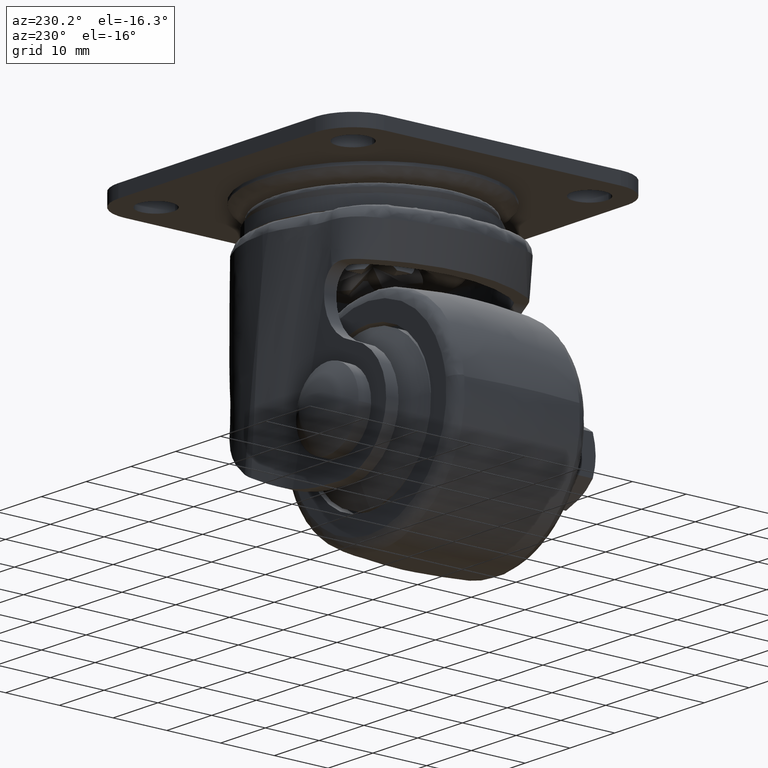
[diagram: clean part render]
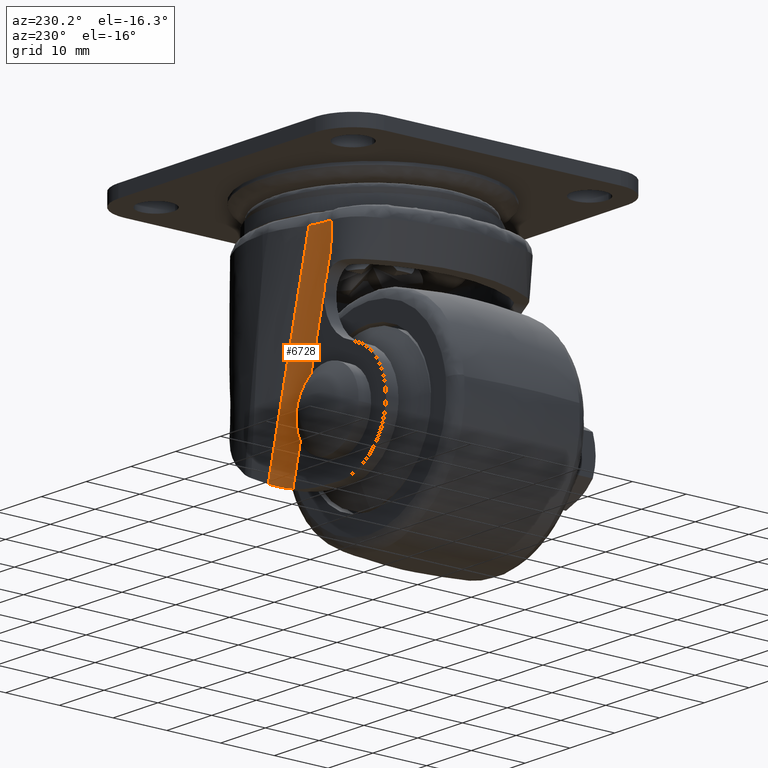
[diagram: same view with one face highlighted and labeled with its STEP entity id]
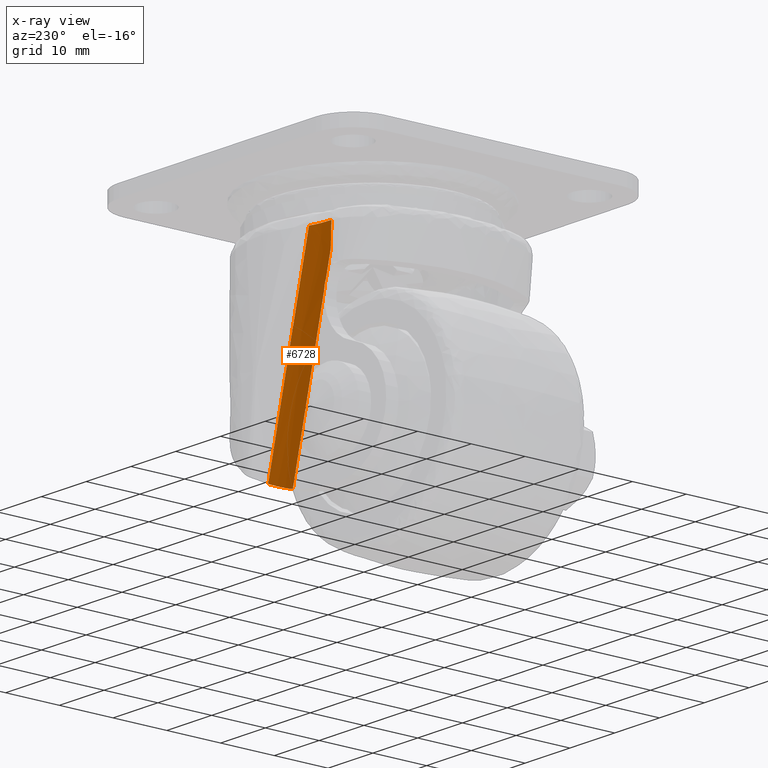
[diagram: x-ray of the same camera — body ghosted, the highlighted face saturated]
A machine part, auxiliary view. The second image highlights one B-rep face of the part: STEP entity #6728.
The next image is the same camera in x-ray: the body ghosted, the highlighted face saturated — about 0% of this face is hidden behind the body in this view.
In plain terms, the highlighted face is a freeform B-spline surface patch.
Its self-contained STEP definition (entity closure, byte-faithful):
#4247=CARTESIAN_POINT('',(-10.891872413798600,17.800000000000001,-19.564617453869751));
#4248=VERTEX_POINT('',#4247);
#4262=CARTESIAN_POINT('',(-10.543469296541661,17.800100559974599,-20.776611627268800));
#4263=VERTEX_POINT('',#4262);
#4264=CARTESIAN_POINT('',(-10.543469296541661,17.800100559974599,-20.776611627268800));
#4265=CARTESIAN_POINT('',(-10.568957165791710,17.800218968249411,-20.565247248742359));
#4266=CARTESIAN_POINT('',(-10.611048432305880,17.800320316515020,-20.358655729035188));
#4267=CARTESIAN_POINT('',(-10.727182804815460,17.800211318014330,-19.954657677524050));
#4268=CARTESIAN_POINT('',(-10.801225908746160,17.800000000000001,-19.757251145207199));
#4269=CARTESIAN_POINT('',(-10.891872413798559,17.800000000000001,-19.564617453869801));
#4270=B_SPLINE_CURVE_WITH_KNOTS('',3,(#4264,#4265,#4266,#4267,#4268,#4269),.UNSPECIFIED.,.F.,.U.,(4,2,4),(0.0,0.500000000000000,1.0),.UNSPECIFIED.);
#4271=EDGE_CURVE('',#4263,#4248,#4270,.T.);
#4350=CARTESIAN_POINT('',(-8.362607122641091,18.851401869158849,-11.258884488726800));
#4351=VERTEX_POINT('',#4350);
#4422=CARTESIAN_POINT('',(-12.161408572798400,17.834037081839401,-11.065201181730499));
#4423=VERTEX_POINT('',#4422);
#4450=CARTESIAN_POINT('',(-12.161408572798400,17.834037081839401,-11.065201181730499));
#4451=CARTESIAN_POINT('',(-10.159844048639513,17.992643068313022,-11.167251694580990));
#4452=CARTESIAN_POINT('',(-8.362607122641091,18.851401869158849,-11.258884488726800));
#4460=(BOUNDED_CURVE()B_SPLINE_CURVE(2,(#4450,#4451,#4452),.UNSPECIFIED.,.F.,.U.)CURVE()GEOMETRIC_REPRESENTATION_ITEM()QUASI_UNIFORM_CURVE()RATIONAL_B_SPLINE_CURVE((1.0,0.981990180371549,1.0))REPRESENTATION_ITEM(''));
#4461=EDGE_CURVE('',#4423,#4351,#4460,.T.);
#5545=CARTESIAN_POINT('',(-11.974270727076560,17.800000000001749,-15.223352042565550));
#5546=VERTEX_POINT('',#5545);
#5547=CARTESIAN_POINT('',(-11.974270727076560,17.800000000001749,-15.223352042565550));
#5548=CARTESIAN_POINT('',(-11.991592150697350,17.800975090017690,-14.722576629232931));
#5549=CARTESIAN_POINT('',(-12.026999265753711,17.802968293644629,-13.698930243956950));
#5550=CARTESIAN_POINT('',(-12.092801888951360,17.816467207444308,-12.312972992399800));
#5551=CARTESIAN_POINT('',(-12.140620230055930,17.828451532002472,-11.427857976382610));
#5552=CARTESIAN_POINT('',(-12.161408572798400,17.834037081839401,-11.065201181730499));
#5553=B_SPLINE_CURVE_WITH_KNOTS('',3,(#5547,#5548,#5549,#5550,#5551,#5552),.UNSPECIFIED.,.F.,.U.,(4,1,1,4),(0.0,0.234461903216059,0.479268896439672,0.649262785365348),.UNSPECIFIED.);
#5554=EDGE_CURVE('',#5546,#4423,#5553,.T.);
#6511=CARTESIAN_POINT('',(0.726185769727384,18.851401869158849,-47.712061239150508));
#6512=VERTEX_POINT('',#6511);
#6513=CARTESIAN_POINT('',(-8.362607122641091,18.851401869158849,-11.258884488726800));
#6514=CARTESIAN_POINT('',(0.726185769727384,18.851401869158849,-47.712061239150508));
#6515=QUASI_UNIFORM_CURVE('',1,(#6513,#6514),.UNSPECIFIED.,.F.,.U.);
#6516=EDGE_CURVE('',#4351,#6512,#6515,.T.);
#6577=CARTESIAN_POINT('',(-10.891872413798600,17.800000000000001,-19.564617453869751));
#6578=CARTESIAN_POINT('',(-11.974270727076560,17.800000000001749,-15.223352042565550));
#6579=QUASI_UNIFORM_CURVE('',1,(#6577,#6578),.UNSPECIFIED.,.F.,.U.);
#6580=EDGE_CURVE('',#4248,#5546,#6579,.T.);
#6606=CARTESIAN_POINT('',(-3.503599881279640,17.800000000000001,-49.197375917796997));
#6607=VERTEX_POINT('',#6606);
#6653=CARTESIAN_POINT('',(-10.511530513783020,17.800000000000001,-21.090086311071001));
#6654=VERTEX_POINT('',#6653);
#6668=CARTESIAN_POINT('',(-3.503599881279640,17.800000000000001,-49.197375917796997));
#6669=CARTESIAN_POINT('',(-10.511530513783020,17.800000000000001,-21.090086311071001));
#6670=QUASI_UNIFORM_CURVE('',1,(#6668,#6669),.UNSPECIFIED.,.F.,.U.);
#6671=EDGE_CURVE('',#6607,#6654,#6670,.T.);
#6682=CARTESIAN_POINT('',(1.260666734233128,18.955546238225331,-49.016781666527159));
#6683=CARTESIAN_POINT('',(-8.675818576795093,18.955546238225331,-9.163694506290479));
#6684=CARTESIAN_POINT('',(-0.969169330446625,17.743042104053306,-49.572741941664852));
#6685=CARTESIAN_POINT('',(-10.905654641474850,17.743042104053306,-9.719654781428167));
#6686=CARTESIAN_POINT('',(-3.489675050578032,17.802629946164931,-50.201174262698096));
#6687=CARTESIAN_POINT('',(-13.426160361606255,17.802629946164931,-10.348087102461422));
#6695=(BOUNDED_SURFACE()B_SPLINE_SURFACE(1,2,((#6682,#6684,#6686),(#6683,#6685,#6687)),.UNSPECIFIED.,.F.,.F.,.U.)B_SPLINE_SURFACE_WITH_KNOTS((2,2),(3,3),(0.0,41.073133512524961),(0.0,5.111820256279327),.UNSPECIFIED.)GEOMETRIC_REPRESENTATION_ITEM()RATIONAL_B_SPLINE_SURFACE(((0.998308439744630,0.963531144277340,0.992751290529235),(0.998308439744630,0.963531144277340,0.992751290529235)))REPRESENTATION_ITEM('')SURFACE());
#6696=ORIENTED_EDGE('',*,*,#5554,.T.);
#6697=ORIENTED_EDGE('',*,*,#4461,.T.);
#6698=ORIENTED_EDGE('',*,*,#6516,.T.);
#6699=CARTESIAN_POINT('',(-3.503599881279630,17.799999999999990,-49.197375917797018));
#6700=CARTESIAN_POINT('',(-3.129411235991830,17.800000000000001,-49.096663603459561));
#6701=CARTESIAN_POINT('',(-2.759281756488398,17.822439873539508,-48.989272149964947));
#6702=CARTESIAN_POINT('',(-2.026947782539830,17.911500738776649,-48.761561905791950));
#6703=CARTESIAN_POINT('',(-1.664743483887014,17.978119862545011,-48.641241894060087));
#6704=CARTESIAN_POINT('',(-1.216927528185530,18.089704011235380,-48.483020277656891));
#6705=CARTESIAN_POINT('',(-1.127464900240681,18.113484678889009,-48.450930739126548));
#6706=CARTESIAN_POINT('',(-0.950016182072661,18.163636937457401,-48.386335868385977));
#6707=CARTESIAN_POINT('',(-0.861987674272127,18.190013295141551,-48.353817421915792));
#6708=CARTESIAN_POINT('',(-0.599948203783760,18.272986107143229,-48.255635203376642));
#6709=CARTESIAN_POINT('',(-0.427981676516692,18.333422737619291,-48.189344463227343));
#6710=CARTESIAN_POINT('',(0.080008434623250,18.529776262393799,-47.988254999825813));
#6711=CARTESIAN_POINT('',(0.408144905371822,18.680684569384230,-47.851234486926543));
#6712=CARTESIAN_POINT('',(0.726185769727321,18.851401869159009,-47.712061239150529));
#6713=B_SPLINE_CURVE_WITH_KNOTS('',3,(#6699,#6700,#6701,#6702,#6703,#6704,#6705,#6706,#6707,#6708,#6709,#6710,#6711,#6712),.UNSPECIFIED.,.F.,.U.,(4,2,2,2,2,2,4),(0.0,0.250000000000000,0.500000000000000,0.562500000000000,0.625000000000000,0.750000000000000,1.0),.UNSPECIFIED.);
#6714=EDGE_CURVE('',#6607,#6512,#6713,.T.);
#6715=ORIENTED_EDGE('',*,*,#6714,.F.);
#6716=ORIENTED_EDGE('',*,*,#6671,.T.);
#6717=CARTESIAN_POINT('',(-10.511530513783031,17.800000000000001,-21.090086311071008));
#6718=CARTESIAN_POINT('',(-10.520263096501010,17.800000000000001,-20.985197437771411));
#6719=CARTESIAN_POINT('',(-10.530916664507210,17.800042244566260,-20.880707393093889));
#6720=CARTESIAN_POINT('',(-10.543469296541669,17.800100559974609,-20.776611627268800));
#6721=QUASI_UNIFORM_CURVE('',3,(#6717,#6718,#6719,#6720),.UNSPECIFIED.,.F.,.U.);
#6722=EDGE_CURVE('',#6654,#4263,#6721,.T.);
#6723=ORIENTED_EDGE('',*,*,#6722,.T.);
#6724=ORIENTED_EDGE('',*,*,#4271,.T.);
#6725=ORIENTED_EDGE('',*,*,#6580,.T.);
#6726=EDGE_LOOP('',(#6696,#6697,#6698,#6715,#6716,#6723,#6724,#6725));
#6727=FACE_OUTER_BOUND('',#6726,.T.);
#6728=ADVANCED_FACE('',(#6727),#6695,.F.);